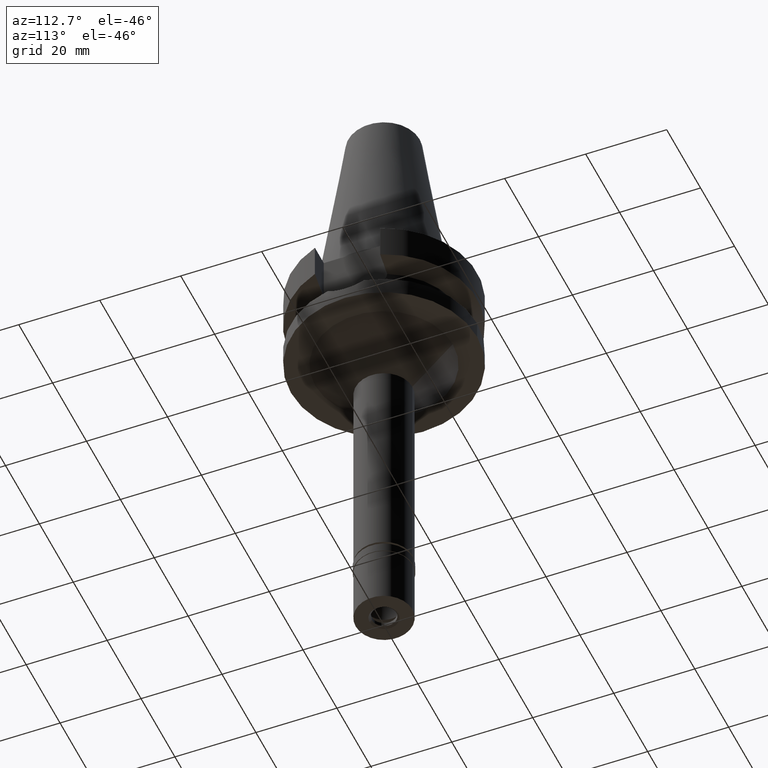
[diagram: clean part render]
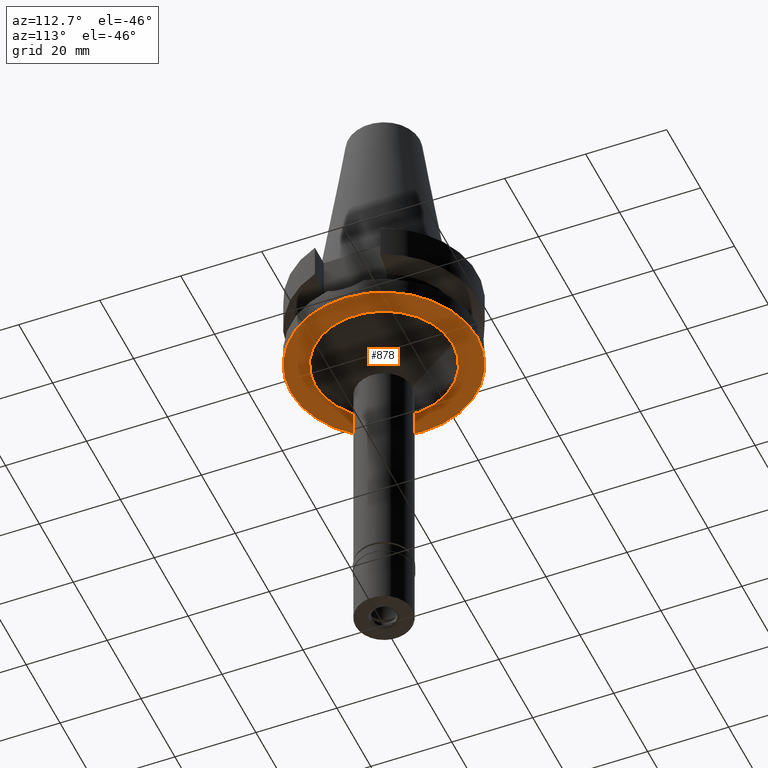
[diagram: same view with one face highlighted and labeled with its STEP entity id]
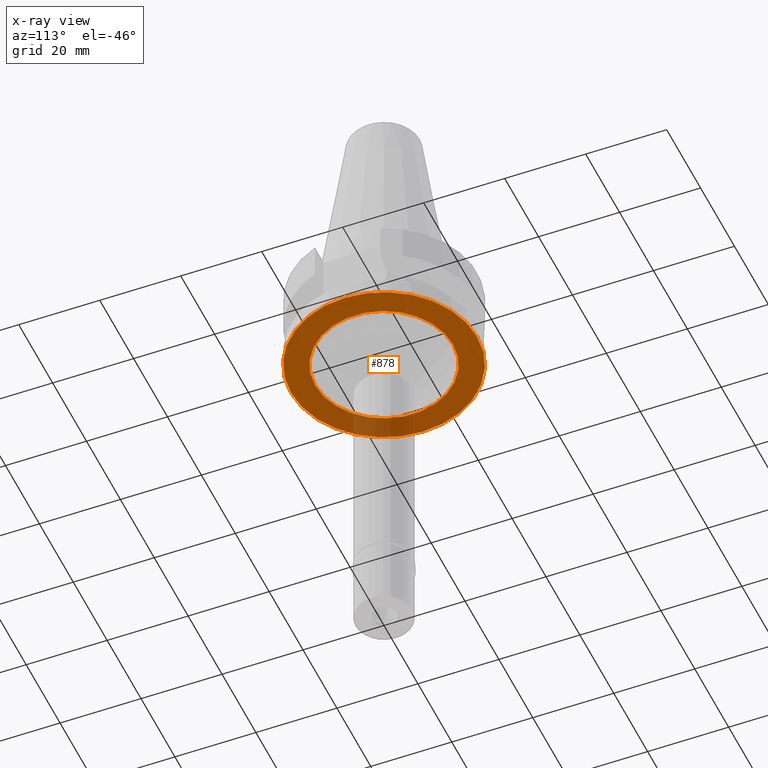
[diagram: x-ray of the same camera — body ghosted, the highlighted face saturated]
A machine part, auxiliary view. The second image highlights one B-rep face of the part: STEP entity #878.
The next image is the same camera in x-ray: the body ghosted, the highlighted face saturated — about 11% of this face is hidden behind the body in this view.
In plain terms, the highlighted planar face has unit normal (0, 0, -1).
Its self-contained STEP definition (entity closure, byte-faithful):
#45 = CARTESIAN_POINT ( 'NONE',  ( 0.0000000000000000000, 0.0000000000000000000, -22.00000000000000000 ) ) ;
#51 = ORIENTED_EDGE ( 'NONE', *, *, #1373, .F. ) ;
#62 = DIRECTION ( 'NONE',  ( 0.0000000000000000000, 0.0000000000000000000, -1.000000000000000000 ) ) ;
#102 = EDGE_LOOP ( 'NONE', ( #1073, #792 ) ) ;
#110 = FACE_BOUND ( 'NONE', #102, .T. ) ;
#148 = AXIS2_PLACEMENT_3D ( 'NONE', #45, #725, #2725 ) ;
#307 = EDGE_CURVE ( 'NONE', #2766, #1696, #1683, .T. ) ;
#724 = FACE_OUTER_BOUND ( 'NONE', #1303, .T. ) ;
#725 = DIRECTION ( 'NONE',  ( 0.0000000000000000000, 0.0000000000000000000, -1.000000000000000000 ) ) ;
#742 = AXIS2_PLACEMENT_3D ( 'NONE', #1471, #955, #2369 ) ;
#792 = ORIENTED_EDGE ( 'NONE', *, *, #2680, .F. ) ;
#878 = ADVANCED_FACE ( 'NONE', ( #724, #110 ), #2589, .T. ) ;
#893 = DIRECTION ( 'NONE',  ( 0.0000000000000000000, 0.0000000000000000000, 1.000000000000000000 ) ) ;
#955 = DIRECTION ( 'NONE',  ( 0.0000000000000000000, 0.0000000000000000000, -1.000000000000000000 ) ) ;
#956 = CARTESIAN_POINT ( 'NONE',  ( 0.0000000000000000000, 17.00179173279000011, -22.00000000000000000 ) ) ;
#958 = CIRCLE ( 'NONE', #148, 17.00179173279000011 ) ;
#1032 = DIRECTION ( 'NONE',  ( 0.0000000000000000000, -1.000000000000000000, 0.0000000000000000000 ) ) ;
#1073 = ORIENTED_EDGE ( 'NONE', *, *, #2333, .F. ) ;
#1158 = CARTESIAN_POINT ( 'NONE',  ( 0.0000000000000000000, 1.908856965831000054E-14, -22.00000000000000000 ) ) ;
#1160 = CARTESIAN_POINT ( 'NONE',  ( 0.0000000000000000000, 0.0000000000000000000, -22.00000000000000000 ) ) ;
#1260 = CIRCLE ( 'NONE', #2104, 23.00179173279000011 ) ;
#1267 = AXIS2_PLACEMENT_3D ( 'NONE', #1160, #62, #2154 ) ;
#1272 = CARTESIAN_POINT ( 'NONE',  ( 0.0000000000000000000, 1.908856965831000054E-14, -22.00000000000000000 ) ) ;
#1282 = CARTESIAN_POINT ( 'NONE',  ( 0.0000000000000000000, -23.00179173279000011, -22.00000000000000000 ) ) ;
#1303 = EDGE_LOOP ( 'NONE', ( #51, #1500 ) ) ;
#1373 = EDGE_CURVE ( 'NONE', #1696, #2766, #1260, .T. ) ;
#1471 = CARTESIAN_POINT ( 'NONE',  ( 0.0000000000000000000, 0.0000000000000000000, -22.00000000000000000 ) ) ;
#1500 = ORIENTED_EDGE ( 'NONE', *, *, #307, .F. ) ;
#1683 = CIRCLE ( 'NONE', #1934, 23.00179173279000011 ) ;
#1696 = VERTEX_POINT ( 'NONE', #1716 ) ;
#1716 = CARTESIAN_POINT ( 'NONE',  ( 0.0000000000000000000, 23.00179173279000011, -22.00000000000000000 ) ) ;
#1934 = AXIS2_PLACEMENT_3D ( 'NONE', #1272, #2176, #1032 ) ;
#2104 = AXIS2_PLACEMENT_3D ( 'NONE', #1158, #893, #2456 ) ;
#2117 = VERTEX_POINT ( 'NONE', #2286 ) ;
#2154 = DIRECTION ( 'NONE',  ( 0.0000000000000000000, -1.000000000000000000, 0.0000000000000000000 ) ) ;
#2176 = DIRECTION ( 'NONE',  ( 0.0000000000000000000, 0.0000000000000000000, 1.000000000000000000 ) ) ;
#2286 = CARTESIAN_POINT ( 'NONE',  ( 0.0000000000000000000, -17.00179173279000011, -22.00000000000000000 ) ) ;
#2333 = EDGE_CURVE ( 'NONE', #2751, #2117, #958, .T. ) ;
#2369 = DIRECTION ( 'NONE',  ( 0.0000000000000000000, -1.000000000000000000, 0.0000000000000000000 ) ) ;
#2456 = DIRECTION ( 'NONE',  ( 0.0000000000000000000, 1.000000000000000000, 0.0000000000000000000 ) ) ;
#2529 = CIRCLE ( 'NONE', #1267, 17.00179173279000011 ) ;
#2589 = PLANE ( 'NONE',  #742 ) ;
#2680 = EDGE_CURVE ( 'NONE', #2117, #2751, #2529, .T. ) ;
#2725 = DIRECTION ( 'NONE',  ( 0.0000000000000000000, 1.000000000000000000, 0.0000000000000000000 ) ) ;
#2751 = VERTEX_POINT ( 'NONE', #956 ) ;
#2766 = VERTEX_POINT ( 'NONE', #1282 ) ;